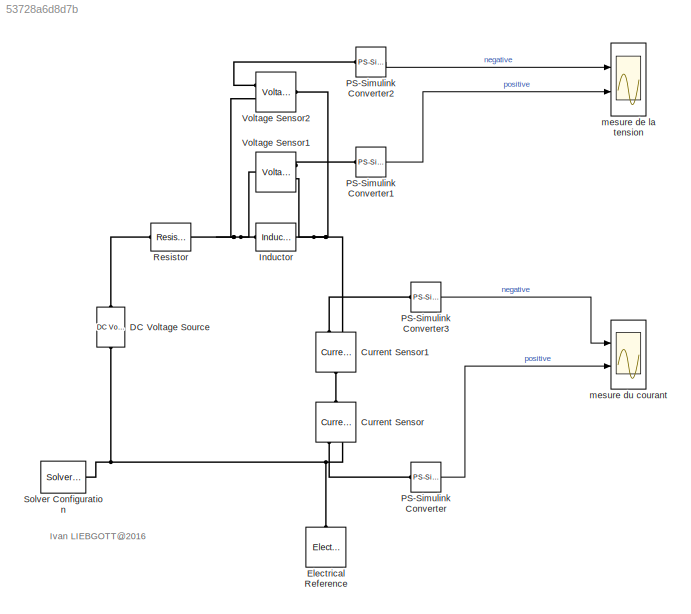
MODEL slx_53728a6d8d7b
KIND model
CONFIG AbsTol = auto
CONFIG FixedStep = auto
CONFIG MaxStep = auto
CONFIG MinStep = auto
CONFIG RelTol = 1e-3
CONFIG SampleTimeConstraint = Unconstrained
CONFIG Solver = ode15s
CONFIG SolverMode = Auto
CONFIG SolverName = ode15s
CONFIG StartTime = 0.0
CONFIG StopTime = 1e-5
BLOCK [Reference] Current Sensor  REF=fl_lib/Electrical/Electrical Sensors/Current Sensor
  Ports = [0, 0, 0, 0, 0, 1, 2]
  SourceBlock = fl_lib/Electrical/Electrical Sensors/Current Sensor
  SourceType = Current Sensor
BLOCK [Reference] Current Sensor1  REF=fl_lib/Electrical/Electrical Sensors/Current Sensor
  Ports = [0, 0, 0, 0, 0, 1, 2]
  SourceBlock = fl_lib/Electrical/Electrical Sensors/Current Sensor
  SourceType = Current Sensor
BLOCK [Reference] DC Voltage Source  REF=fl_lib/Electrical/Electrical Sources/DC Voltage Source
  Ports = [0, 0, 0, 0, 0, 1, 1]
  SourceBlock = fl_lib/Electrical/Electrical Sources/DC Voltage Source
  SourceType = DC Voltage Source
BLOCK [Reference] Electrical Reference  REF=fl_lib/Electrical/Electrical Elements/Electrical Reference
  Ports = [0, 0, 0, 0, 0, 1]
  SourceBlock = fl_lib/Electrical/Electrical Elements/Electrical Reference
  SourceType = Electrical Reference
BLOCK [Reference] Inductor  REF=fl_lib/Electrical/Electrical Elements/Inductor
  Ports = [0, 0, 0, 0, 0, 1, 1]
  SourceBlock = fl_lib/Electrical/Electrical Elements/Inductor
  SourceType = Inductor
BLOCK [Reference] PS-Simulink Converter  REF=nesl_utility/PS-Simulink
Converter
  Ports = [0, 1, 0, 0, 0, 1]
  SourceBlock = nesl_utility/PS-Simulink\nConverter
  SourceType = PS-Simulink\nConverter
BLOCK [Reference] PS-Simulink Converter1  REF=nesl_utility/PS-Simulink
Converter
  Ports = [0, 1, 0, 0, 0, 1]
  SourceBlock = nesl_utility/PS-Simulink\nConverter
  SourceType = PS-Simulink\nConverter
BLOCK [Reference] PS-Simulink Converter2  REF=nesl_utility/PS-Simulink
Converter
  Ports = [0, 1, 0, 0, 0, 1]
  SourceBlock = nesl_utility/PS-Simulink\nConverter
  SourceType = PS-Simulink\nConverter
BLOCK [Reference] PS-Simulink Converter3  REF=nesl_utility/PS-Simulink
Converter
  Ports = [0, 1, 0, 0, 0, 1]
  SourceBlock = nesl_utility/PS-Simulink\nConverter
  SourceType = PS-Simulink\nConverter
BLOCK [Reference] Resistor  REF=fl_lib/Electrical/Electrical Elements/Resistor
  Ports = [0, 0, 0, 0, 0, 1, 1]
  SourceBlock = fl_lib/Electrical/Electrical Elements/Resistor
  SourceType = Resistor
BLOCK [Reference] Solver Configuration  REF=nesl_utility/Solver
Configuration
  Ports = [0, 0, 0, 0, 0, 0, 1]
  SourceBlock = nesl_utility/Solver\nConfiguration
  SourceType = Solver\nConfiguration
BLOCK [Reference] Voltage Sensor1  REF=fl_lib/Electrical/Electrical Sensors/Voltage Sensor
  Ports = [0, 0, 0, 0, 0, 1, 2]
  SourceBlock = fl_lib/Electrical/Electrical Sensors/Voltage Sensor
  SourceType = Voltage Sensor
BLOCK [Reference] Voltage Sensor2  REF=fl_lib/Electrical/Electrical Sensors/Voltage Sensor
  Ports = [0, 0, 0, 0, 0, 1, 2]
  SourceBlock = fl_lib/Electrical/Electrical Sensors/Voltage Sensor
  SourceType = Voltage Sensor
BLOCK [Scope] mesure de la tension
  NumInputPorts = 2
  Ports = [2]
  ScopeSpecificationString = C++SS(StrPVP('Location','[1, 48, 1367, 767]'),StrPVP('Open','off'),MxPVP('AxesTitles',24,'struct(''axes1'',''%<SignalLabel>'',''axes2'',''%<SignalLabel>'')'),MxPVP('ScopeGraphics',28,'struct(''FigureColor'',''[0.501960784313725 0.501960784313725 0.501960784313725]'',''AxesColor'',''[1 1 1]'',''AxesTickColor'',''[0 0 0]'',''LineColors'',''[0 0 1;1 0 1;0 1 1;1 0 0;0 1 0;0 0 1]'',''LineStyles'',''-|-...<+382ch>
BLOCK [Scope] mesure du courant
  NumInputPorts = 2
  Ports = [2]
  ScopeSpecificationString = C++SS(StrPVP('Location','[1, 48, 1367, 767]'),StrPVP('Open','off'),MxPVP('AxesTitles',24,'struct(''axes1'',''%<SignalLabel>'',''axes2'',''%<SignalLabel>'')'),MxPVP('ScopeGraphics',28,'struct(''FigureColor'',''[0.501960784313725 0.501960784313725 0.501960784313725]'',''AxesColor'',''[1 1 1]'',''AxesTickColor'',''[0 0 0]'',''LineColors'',''[0 0 1;1 0 1;0 1 1;1 0 0;0 1 0;0 0 1]'',''LineStyles'',''-|-...<+349ch>
ANNOTATION (root): Ivan LIEBGOTT@2016
LINE PS-Simulink Converter1:1 -> mesure de la tension:2
LINE PS-Simulink Converter2:1 -> mesure de la tension:1
LINE PS-Simulink Converter3:1 -> mesure du courant:1
LINE PS-Simulink Converter:1 -> mesure du courant:2
PLINE Current Sensor1:LConn1 -- Current Sensor:LConn1
PLINE Current Sensor1:RConn1 -- PS-Simulink Converter3:LConn1
PNET net1: Current Sensor1:RConn2 -- Inductor:RConn1 -- Voltage Sensor1:RConn2 -- Voltage Sensor2:LConn1
PLINE Current Sensor:RConn1 -- PS-Simulink Converter:LConn1
PNET net2: Current Sensor:RConn2 -- DC Voltage Source:RConn1 -- Electrical Reference:LConn1 -- Solver Configuration:RConn1
PLINE DC Voltage Source:LConn1 -- Resistor:LConn1
PNET net3: Inductor:LConn1 -- Resistor:RConn1 -- Voltage Sensor1:LConn1 -- Voltage Sensor2:RConn2
PLINE PS-Simulink Converter1:LConn1 -- Voltage Sensor1:RConn1
PLINE PS-Simulink Converter2:LConn1 -- Voltage Sensor2:RConn1
note: PNET lines group multi-terminal physical nets as a canonical sorted terminal list (undirected conserving connections); 2-terminal nets keep the pairwise PLINE form
